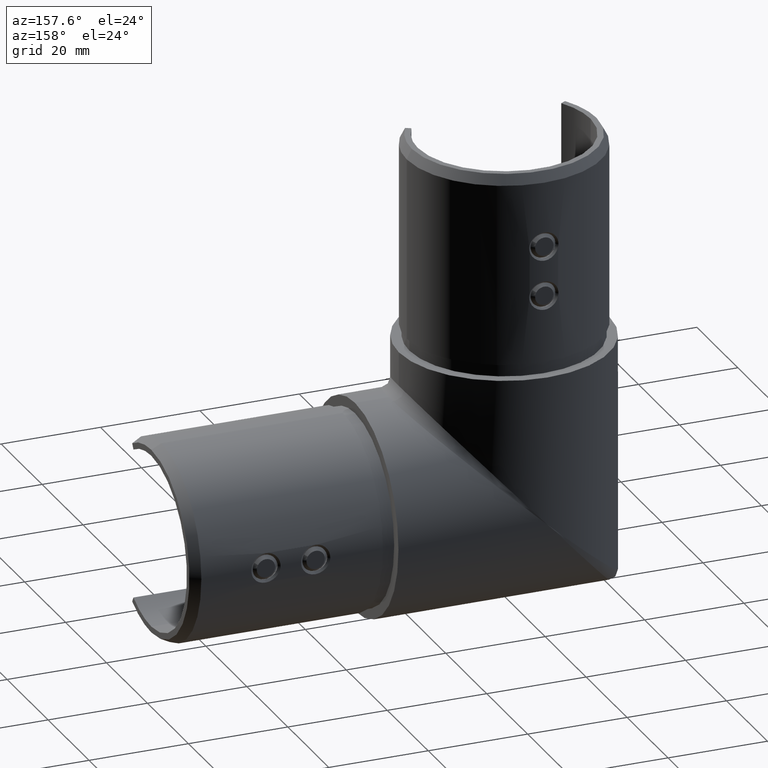
[diagram: clean part render]
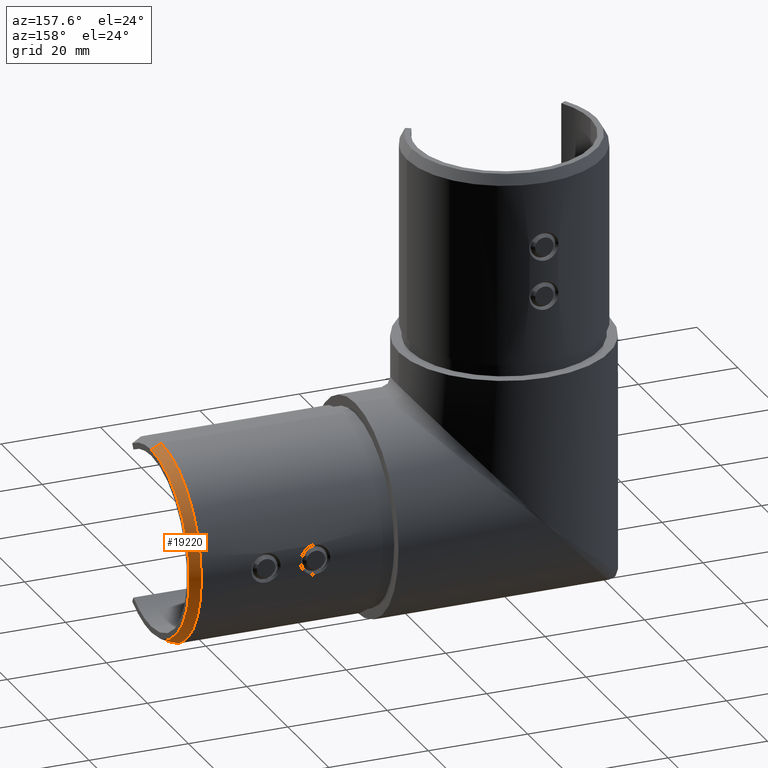
[diagram: same view with one face highlighted and labeled with its STEP entity id]
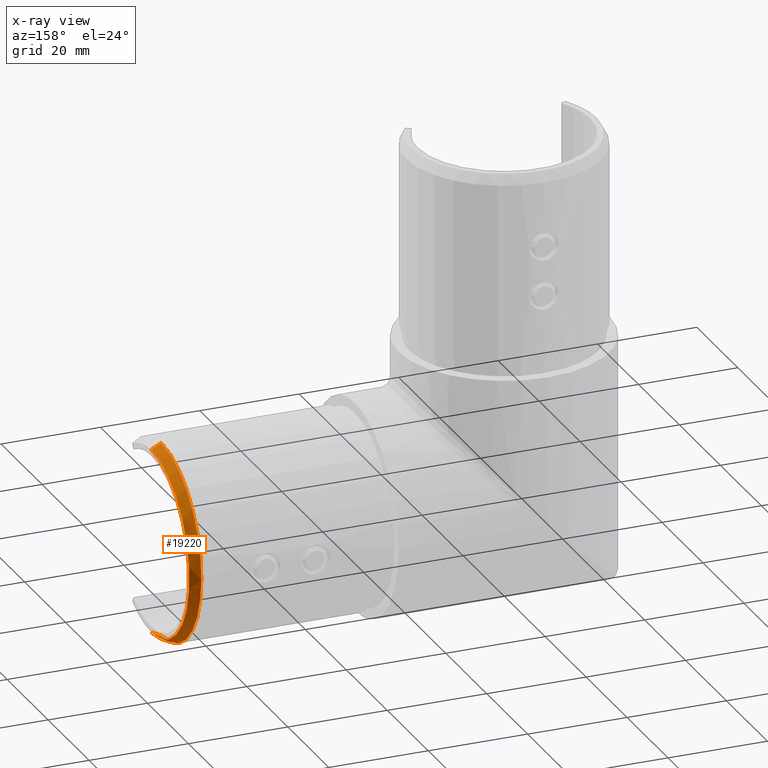
[diagram: x-ray of the same camera — body ghosted, the highlighted face saturated]
A machine part, auxiliary view. The second image highlights one B-rep face of the part: STEP entity #19220.
The next image is the same camera in x-ray: the body ghosted, the highlighted face saturated — about 0% of this face is hidden behind the body in this view.
In plain terms, the highlighted conical surface has half-angle 26.565 deg.
Its self-contained STEP definition (entity closure, byte-faithful):
#118 = EDGE_CURVE ( 'NONE', #17912, #7085, #330, .T. ) ;
#330 = CIRCLE ( 'NONE', #13546, 19.60000000000000500 ) ;
#1037 = LINE ( 'NONE', #9605, #13770 ) ;
#1515 = DIRECTION ( 'NONE',  ( 1.000000000000000000, 0.0000000000000000000, -4.440892098500625200E-016 ) ) ;
#3548 = FACE_OUTER_BOUND ( 'NONE', #11054, .T. ) ;
#3677 = DIRECTION ( 'NONE',  ( -1.000000000000000000, -0.0000000000000000000, 4.440892098500626200E-016 ) ) ;
#4914 = CARTESIAN_POINT ( 'NONE',  ( 71.00000000000002800, 0.0000000000000000000, 18.59999999999995900 ) ) ;
#5238 = VERTEX_POINT ( 'NONE', #11585 ) ;
#6385 = VECTOR ( 'NONE', #7403, 1000.000000000000100 ) ;
#6398 = DIRECTION ( 'NONE',  ( -7.461176240760463900E-016, 0.0000000000000000000, -1.000000000000000000 ) ) ;
#6521 = AXIS2_PLACEMENT_3D ( 'NONE', #12939, #1515, #6398 ) ;
#7085 = VERTEX_POINT ( 'NONE', #18521 ) ;
#7184 = ORIENTED_EDGE ( 'NONE', *, *, #9142, .F. ) ;
#7334 = DIRECTION ( 'NONE',  ( -7.080503983578802800E-016, 0.0000000000000000000, -1.000000000000000000 ) ) ;
#7403 = DIRECTION ( 'NONE',  ( -0.8944271909999168500, 0.0000000000000000000, 0.4472135954999558200 ) ) ;
#7414 = AXIS2_PLACEMENT_3D ( 'NONE', #8387, #18307, #16840 ) ;
#8387 = CARTESIAN_POINT ( 'NONE',  ( 68.99999999999995700, 0.0000000000000000000, -3.064215547965429500E-014 ) ) ;
#9142 = EDGE_CURVE ( 'NONE', #14601, #17912, #15210, .T. ) ;
#9605 = CARTESIAN_POINT ( 'NONE',  ( 68.99999999999994300, 2.400307726328813100E-015, -19.60000000000003700 ) ) ;
#10083 = ORIENTED_EDGE ( 'NONE', *, *, #118, .F. ) ;
#10656 = ORIENTED_EDGE ( 'NONE', *, *, #16440, .T. ) ;
#11054 = EDGE_LOOP ( 'NONE', ( #12651, #10656, #10083, #7184 ) ) ;
#11585 = CARTESIAN_POINT ( 'NONE',  ( 71.00000000000000000, 2.339075386371445100E-015, -18.60000000000002300 ) ) ;
#12114 = EDGE_CURVE ( 'NONE', #5238, #14601, #19815, .T. ) ;
#12651 = ORIENTED_EDGE ( 'NONE', *, *, #12114, .F. ) ;
#12939 = CARTESIAN_POINT ( 'NONE',  ( 71.00000000000001400, 0.0000000000000000000, -3.153033389935443900E-014 ) ) ;
#12944 = CONICAL_SURFACE ( 'NONE', #7414, 19.60000000000000500, 0.4636476090008033200 ) ;
#13546 = AXIS2_PLACEMENT_3D ( 'NONE', #18633, #3677, #7334 ) ;
#13770 = VECTOR ( 'NONE', #19757, 1000.000000000000100 ) ;
#14601 = VERTEX_POINT ( 'NONE', #4914 ) ;
#15210 = LINE ( 'NONE', #17520, #6385 ) ;
#15809 = CARTESIAN_POINT ( 'NONE',  ( 68.99999999999997200, 0.0000000000000000000, 19.59999999999997700 ) ) ;
#16440 = EDGE_CURVE ( 'NONE', #5238, #7085, #1037, .T. ) ;
#16840 = DIRECTION ( 'NONE',  ( 7.080503983578802800E-016, 0.0000000000000000000, 1.000000000000000000 ) ) ;
#17520 = CARTESIAN_POINT ( 'NONE',  ( 68.99999999999997200, 0.0000000000000000000, 19.59999999999997700 ) ) ;
#17912 = VERTEX_POINT ( 'NONE', #15809 ) ;
#18307 = DIRECTION ( 'NONE',  ( -1.000000000000000000, -0.0000000000000000000, 4.440892098500626200E-016 ) ) ;
#18521 = CARTESIAN_POINT ( 'NONE',  ( 68.99999999999994300, 2.400307726328813900E-015, -19.60000000000003700 ) ) ;
#18633 = CARTESIAN_POINT ( 'NONE',  ( 68.99999999999995700, 0.0000000000000000000, -3.064215547965429500E-014 ) ) ;
#19220 = ADVANCED_FACE ( 'NONE', ( #3548 ), #12944, .T. ) ;
#19757 = DIRECTION ( 'NONE',  ( -0.8944271909999174100, 5.476786982641996000E-017, -0.4472135954999550400 ) ) ;
#19815 = CIRCLE ( 'NONE', #6521, 18.59999999999999100 ) ;